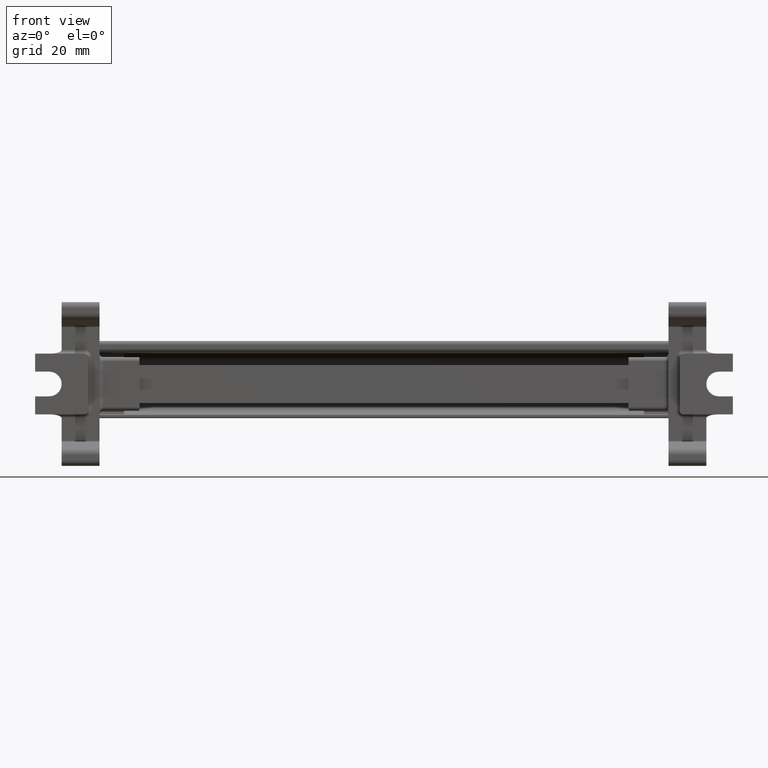
[diagram: clean part render]
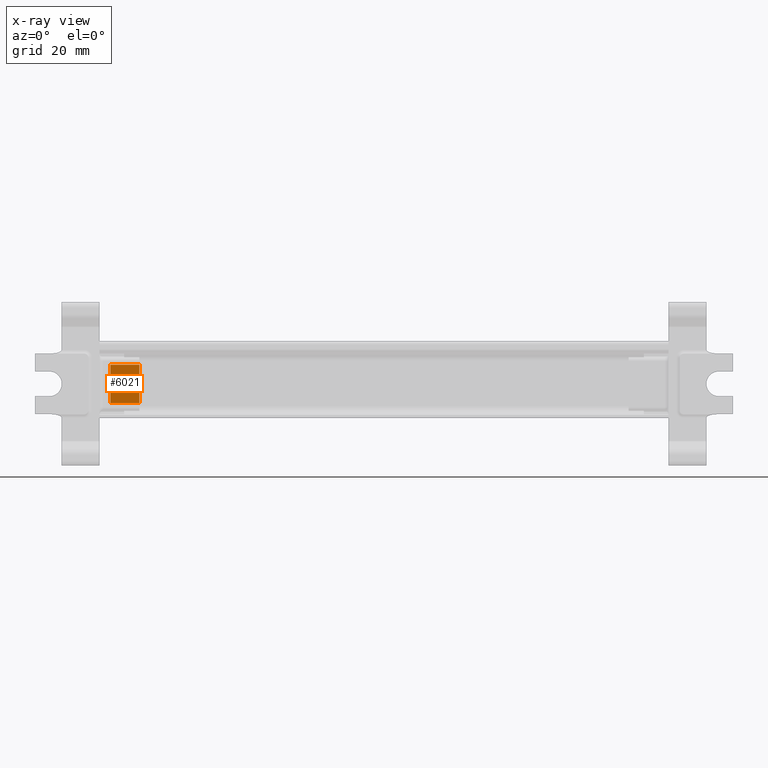
[diagram: x-ray — body ghosted, one internal face saturated and labeled with its STEP entity id]
A machine part, front view, then the same camera in x-ray: the body is ghosted and one INTERNAL B-rep face — a face not visible from any outside direction — is saturated and labeled: STEP entity #6021.
In plain terms, the highlighted planar face has unit normal (0, 1, -0).
Its self-contained STEP definition (entity closure, byte-faithful):
#811 = EDGE_LOOP ( 'NONE', ( #2721, #2694, #2773, #2762 ) ) ;
#2694 = ORIENTED_EDGE ( 'NONE', *, *, #8191, .F. ) ;
#2721 = ORIENTED_EDGE ( 'NONE', *, *, #8160, .F. ) ;
#2762 = ORIENTED_EDGE ( 'NONE', *, *, #8167, .T. ) ;
#2773 = ORIENTED_EDGE ( 'NONE', *, *, #8151, .T. ) ;
#6021 = ADVANCED_FACE ( 'NONE', ( #11213 ), #11222, .T. ) ;
#8151 = EDGE_CURVE ( 'NONE', #24938, #24969, #16297, .T. ) ;
#8160 = EDGE_CURVE ( 'NONE', #25074, #25016, #16328, .T. ) ;
#8167 = EDGE_CURVE ( 'NONE', #24969, #25016, #16350, .T. ) ;
#8191 = EDGE_CURVE ( 'NONE', #24938, #25074, #16357, .T. ) ;
#11213 = FACE_OUTER_BOUND ( 'NONE', #811, .T. ) ;
#11220 = DIRECTION ( 'NONE',  ( 1.771379689657750100E-014, 1.000000000000000000, -6.844917884415865300E-029 ) ) ;
#11222 = PLANE ( 'NONE',  #12720 ) ;
#11224 = CARTESIAN_POINT ( 'NONE',  ( -82.05401174997804500, 46.46882648293050300, 33.07764998369154300 ) ) ;
#11254 = DIRECTION ( 'NONE',  ( 2.318029420568694800E-017, -6.885978986772110100E-029, -1.000000000000000000 ) ) ;
#12720 = AXIS2_PLACEMENT_3D ( 'NONE', #11224, #11220, #11254 ) ;
#16269 = CARTESIAN_POINT ( 'NONE',  ( -104.4633193442854100, 46.46882648293090100, 57.81335666716609700 ) ) ;
#16272 = DIRECTION ( 'NONE',  ( 3.514663655315070200E-015, -1.307072169941924000E-028, -1.000000000000000000 ) ) ;
#16297 = LINE ( 'NONE', #16269, #35349 ) ;
#16310 = CARTESIAN_POINT ( 'NONE',  ( -90.05269769582425000, 46.46882648293060200, 32.98635869811145200 ) ) ;
#16323 = CARTESIAN_POINT ( 'NONE',  ( -112.0526976958242100, 46.46882648293100700, 43.07764998369150100 ) ) ;
#16328 = LINE ( 'NONE', #16323, #35395 ) ;
#16340 = DIRECTION ( 'NONE',  ( 2.318029420568694800E-017, -6.885978986772110100E-029, -1.000000000000000000 ) ) ;
#16350 = LINE ( 'NONE', #16310, #35364 ) ;
#16354 = DIRECTION ( 'NONE',  ( -1.000000000000000000, 1.771379689657750100E-014, 7.071806681342200700E-016 ) ) ;
#16357 = LINE ( 'NONE', #16373, #35381 ) ;
#16367 = DIRECTION ( 'NONE',  ( -1.000000000000000000, 1.771379689657750100E-014, -7.729569084860471100E-015 ) ) ;
#16373 = CARTESIAN_POINT ( 'NONE',  ( -90.05269769582430700, 46.46882648293060200, 43.16894126927129300 ) ) ;
#22333 = CARTESIAN_POINT ( 'NONE',  ( -104.4633193442853000, 46.46882648293090100, 32.98635869811145200 ) ) ;
#22389 = CARTESIAN_POINT ( 'NONE',  ( -104.4633193442853500, 46.46882648293090100, 43.16894126927120100 ) ) ;
#22472 = CARTESIAN_POINT ( 'NONE',  ( -112.0526976958242900, 46.46882648293100700, 32.98635869811145200 ) ) ;
#22575 = CARTESIAN_POINT ( 'NONE',  ( -112.0526976958242900, 46.46882648293100700, 43.16894126927110200 ) ) ;
#24938 = VERTEX_POINT ( 'NONE', #22389 ) ;
#24969 = VERTEX_POINT ( 'NONE', #22333 ) ;
#25016 = VERTEX_POINT ( 'NONE', #22472 ) ;
#25074 = VERTEX_POINT ( 'NONE', #22575 ) ;
#35349 = VECTOR ( 'NONE', #16272, 1000.000000000000000 ) ;
#35364 = VECTOR ( 'NONE', #16354, 1000.000000000000000 ) ;
#35381 = VECTOR ( 'NONE', #16367, 1000.000000000000000 ) ;
#35395 = VECTOR ( 'NONE', #16340, 1000.000000000000000 ) ;